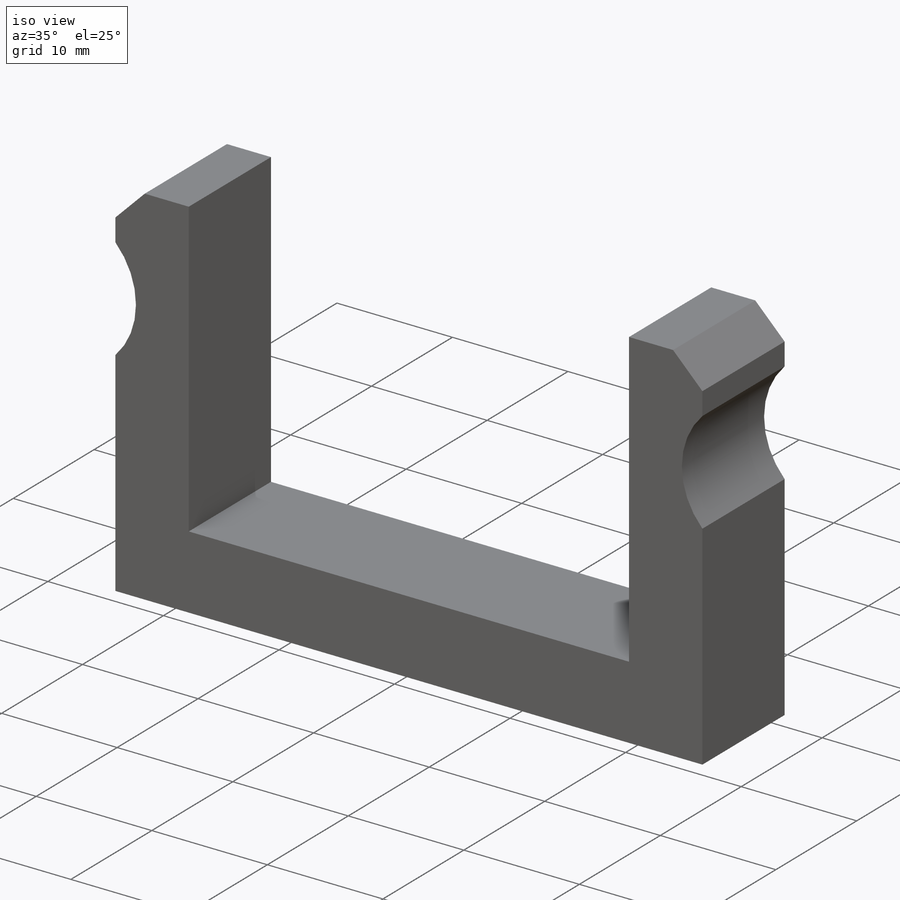
[diagram: iso view]
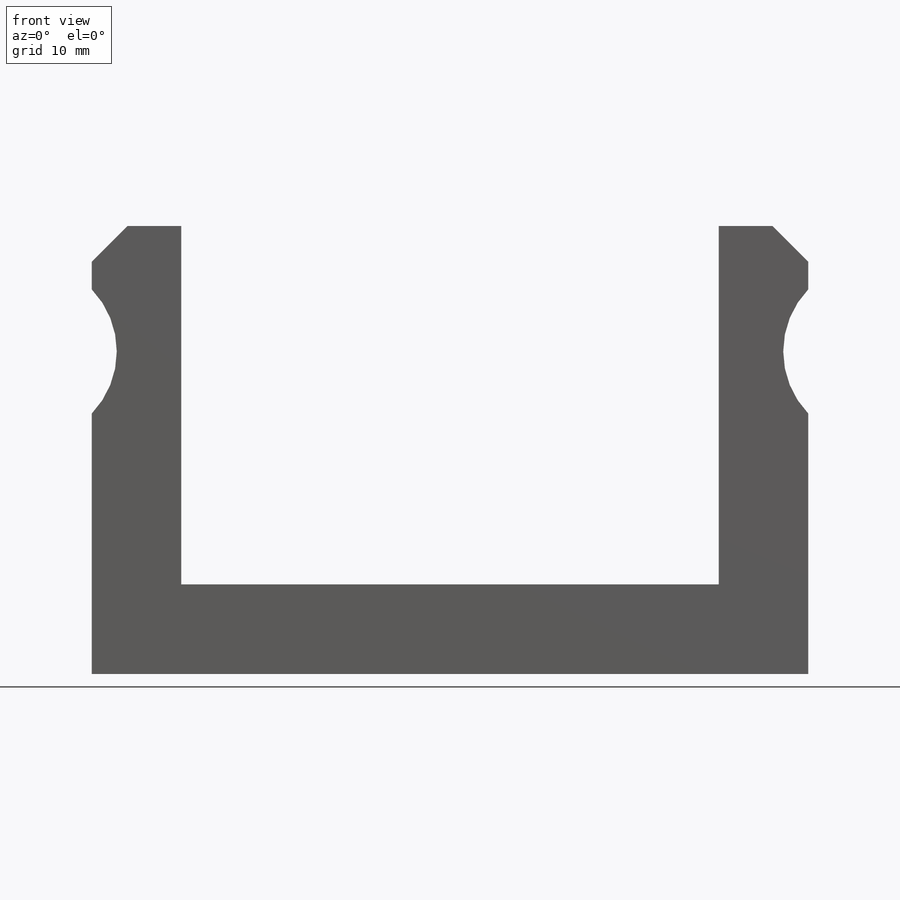
[diagram: front view]
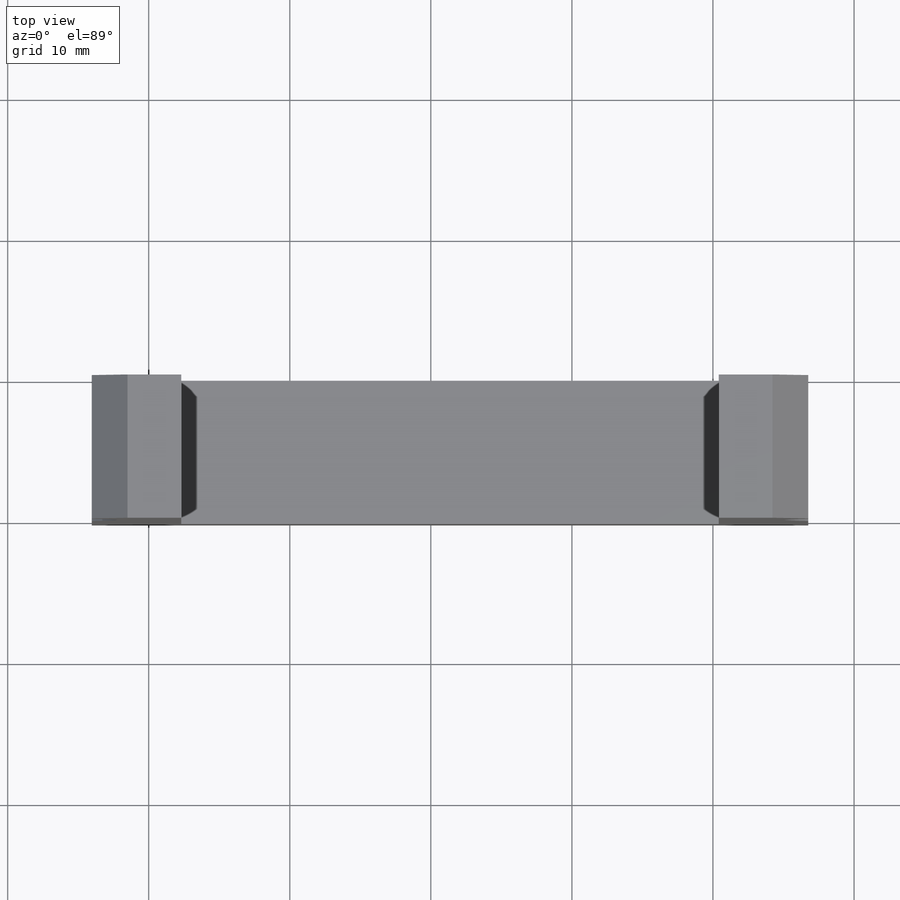
[diagram: top view]
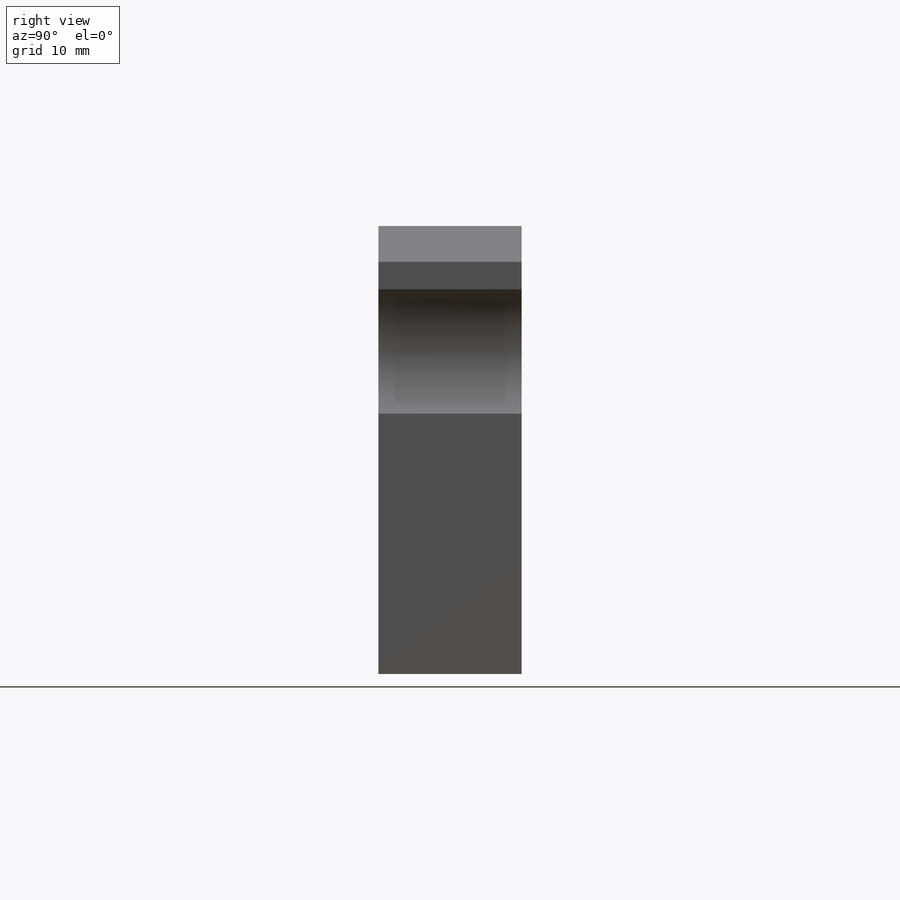
[diagram: right view]
SOLIDWORKS PART (.sldprt)
format: sldprt  version: not decoded by parser v0  size: 158,208 bytes
history: native  units: mm
features: sketch x2, chamfer x2, material x1, extrude x1, cut_extrude x1 (+11 scaffold rows collapsed)
feature tree (18):
  scaffold x11  (default folders/planes/origin — collapsed)
  material  "Material <not specified>"
  sketch  "Sketch1"  dims[D1=31.75mm D2=50.8mm D3=6.35mm D4=6.35mm D5=6.35mm D6=31.75mm D7=50.8mm]
  extrude  "Boss-Extrude1"  Depth=10.16mm
  sketch  "Sketch2"  dims[D2=12.7mm D4=12.7mm D1=4.572mm D3=8.89mm D5=4.572mm D6=8.89mm]
  cut_extrude  "Cut-Extrude1"  Depth=25.4mm
  chamfer  "Chamfer1"  Distance=2.54mm Angle=45deg
  chamfer  "Chamfer2"  Distance=2.54mm Angle=45deg
decode coverage: 6 of 6 modeling features carry decoded parameters
note: suppression state not decoded; provenance and decode notes live in map.json
